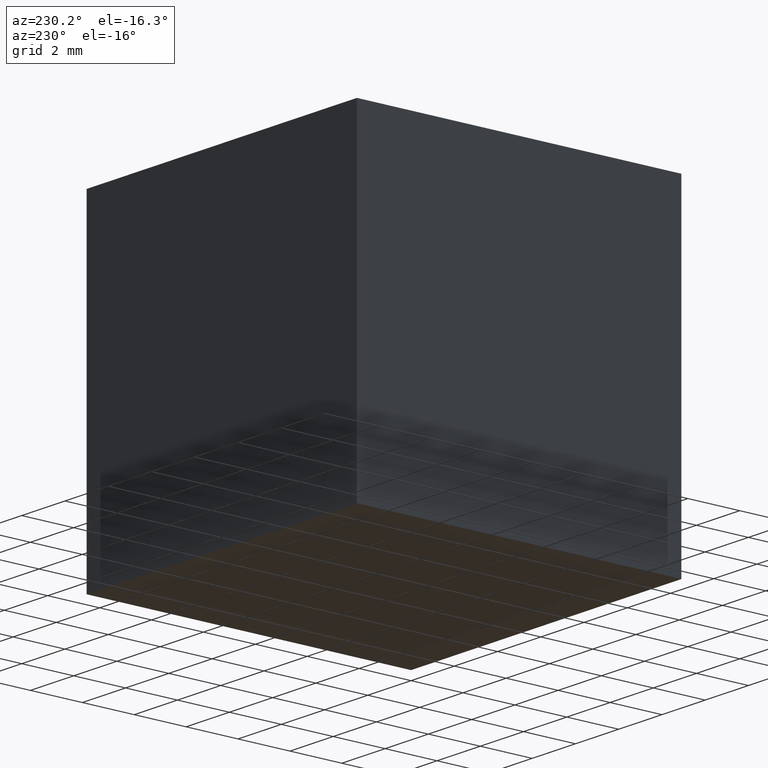
[diagram: clean part render]
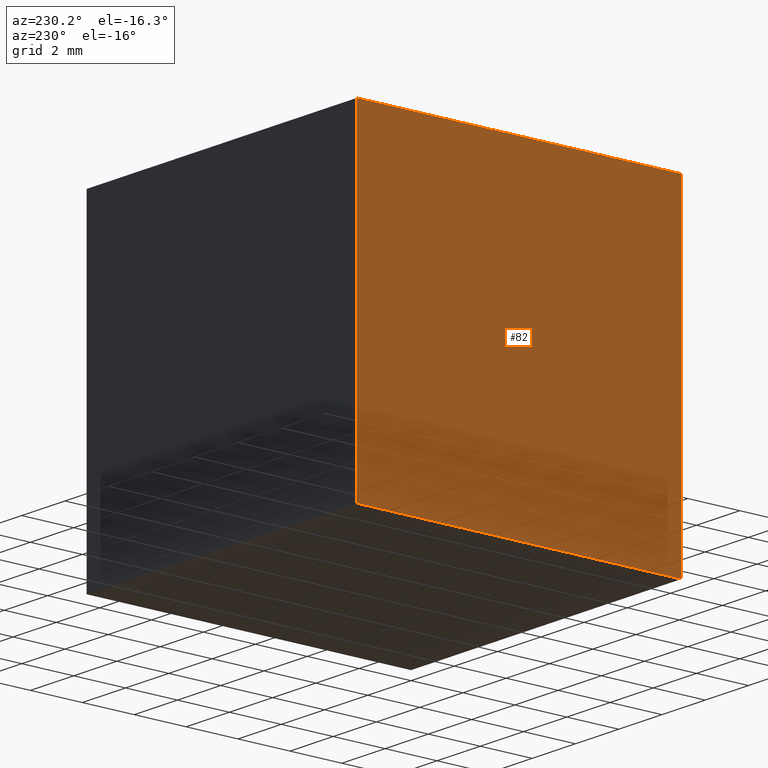
[diagram: same view with one face highlighted and labeled with its STEP entity id]
A machine part, auxiliary view. The second image highlights one B-rep face of the part: STEP entity #82.
In plain terms, the highlighted planar face has unit normal (-1, 0, 0).
Its self-contained STEP definition (entity closure, byte-faithful):
#15 = VECTOR ( 'NONE', #80, 1000.000000000000000 ) ;
#22 = CARTESIAN_POINT ( 'NONE',  ( -12.50000000000000000, 12.50000000000000000, -12.49999999999999800 ) ) ;
#31 = LINE ( 'NONE', #301, #179 ) ;
#41 = EDGE_CURVE ( 'NONE', #97, #195, #291, .T. ) ;
#58 = VERTEX_POINT ( 'NONE', #274 ) ;
#69 = AXIS2_PLACEMENT_3D ( 'NONE', #174, #128, #272 ) ;
#70 = VERTEX_POINT ( 'NONE', #243 ) ;
#80 = DIRECTION ( 'NONE',  ( -0.0000000000000000000, -0.0000000000000000000, -1.000000000000000000 ) ) ;
#82 = ADVANCED_FACE ( 'NONE', ( #255 ), #297, .T. ) ;
#84 = CARTESIAN_POINT ( 'NONE',  ( -12.50000000000000000, 12.50000000000000000, -12.49999999999999800 ) ) ;
#93 = ORIENTED_EDGE ( 'NONE', *, *, #41, .T. ) ;
#94 = CARTESIAN_POINT ( 'NONE',  ( -12.50000000000000000, 12.50000000000000000, -12.49999999999999800 ) ) ;
#95 = LINE ( 'NONE', #94, #147 ) ;
#97 = VERTEX_POINT ( 'NONE', #84 ) ;
#116 = ORIENTED_EDGE ( 'NONE', *, *, #186, .F. ) ;
#128 = DIRECTION ( 'NONE',  ( -1.000000000000000000, 0.0000000000000000000, 0.0000000000000000000 ) ) ;
#143 = DIRECTION ( 'NONE',  ( -0.0000000000000000000, -0.0000000000000000000, -1.000000000000000000 ) ) ;
#147 = VECTOR ( 'NONE', #143, 1000.000000000000000 ) ;
#164 = EDGE_LOOP ( 'NONE', ( #281, #116, #246, #93 ) ) ;
#174 = CARTESIAN_POINT ( 'NONE',  ( -12.50000000000000000, 12.50000000000000000, -12.49999999999999800 ) ) ;
#176 = DIRECTION ( 'NONE',  ( 0.0000000000000000000, -1.000000000000000000, 0.0000000000000000000 ) ) ;
#179 = VECTOR ( 'NONE', #299, 1000.000000000000000 ) ;
#186 = EDGE_CURVE ( 'NONE', #70, #58, #31, .T. ) ;
#192 = LINE ( 'NONE', #266, #15 ) ;
#195 = VERTEX_POINT ( 'NONE', #224 ) ;
#206 = EDGE_CURVE ( 'NONE', #70, #97, #95, .T. ) ;
#224 = CARTESIAN_POINT ( 'NONE',  ( -12.50000000000000000, -0.0000000000000000000, -12.49999999999999800 ) ) ;
#243 = CARTESIAN_POINT ( 'NONE',  ( -12.50000000000000000, 12.50000000000000000, 0.0000000000000000000 ) ) ;
#246 = ORIENTED_EDGE ( 'NONE', *, *, #206, .T. ) ;
#254 = EDGE_CURVE ( 'NONE', #58, #195, #192, .T. ) ;
#255 = FACE_OUTER_BOUND ( 'NONE', #164, .T. ) ;
#264 = VECTOR ( 'NONE', #176, 1000.000000000000000 ) ;
#266 = CARTESIAN_POINT ( 'NONE',  ( -12.50000000000000000, -0.0000000000000000000, -12.49999999999999800 ) ) ;
#272 = DIRECTION ( 'NONE',  ( 0.0000000000000000000, 0.0000000000000000000, 1.000000000000000000 ) ) ;
#274 = CARTESIAN_POINT ( 'NONE',  ( -12.50000000000000000, 0.0000000000000000000, 0.0000000000000000000 ) ) ;
#281 = ORIENTED_EDGE ( 'NONE', *, *, #254, .F. ) ;
#291 = LINE ( 'NONE', #22, #264 ) ;
#297 = PLANE ( 'NONE',  #69 ) ;
#299 = DIRECTION ( 'NONE',  ( 0.0000000000000000000, -1.000000000000000000, 0.0000000000000000000 ) ) ;
#301 = CARTESIAN_POINT ( 'NONE',  ( -12.50000000000000000, 12.50000000000000000, 0.0000000000000000000 ) ) ;